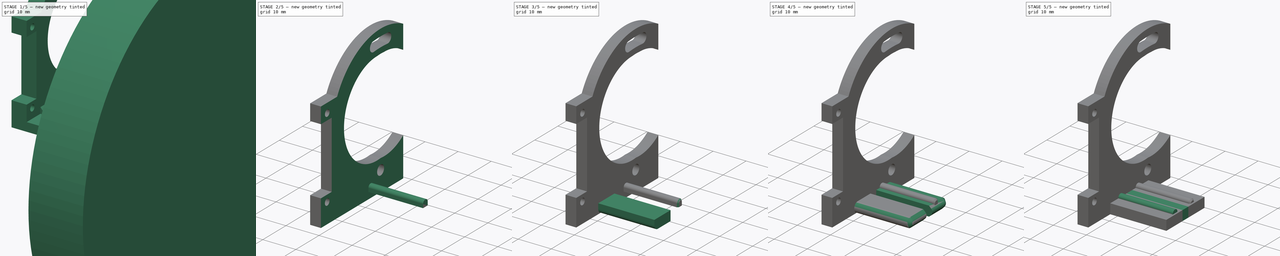
[diagram: build sequence overview — one tinted view per stage of 5, left to right]
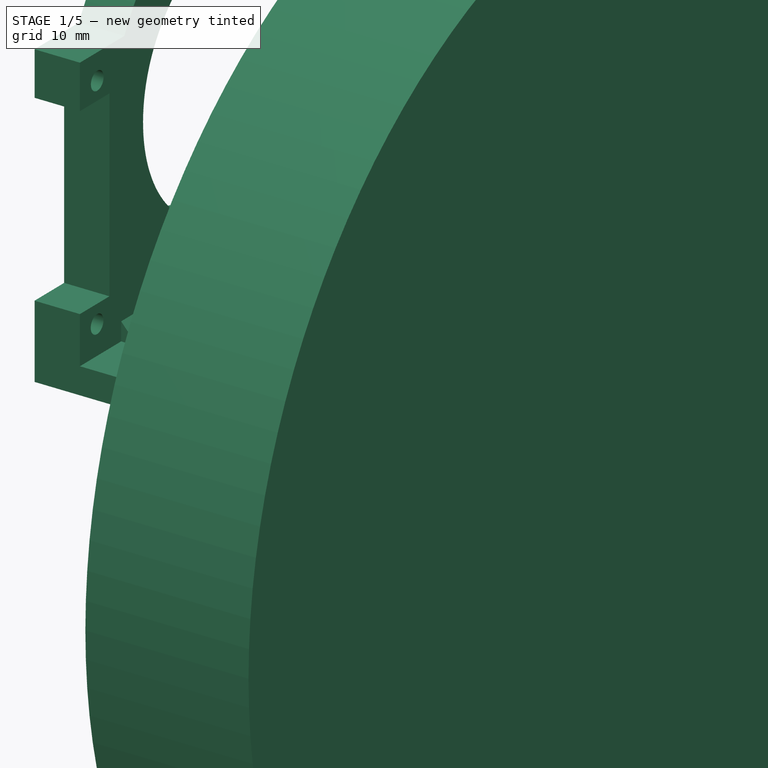
[diagram: stage 1 of 5 — iso view after this stage's code; geometry added in this stage tinted green]
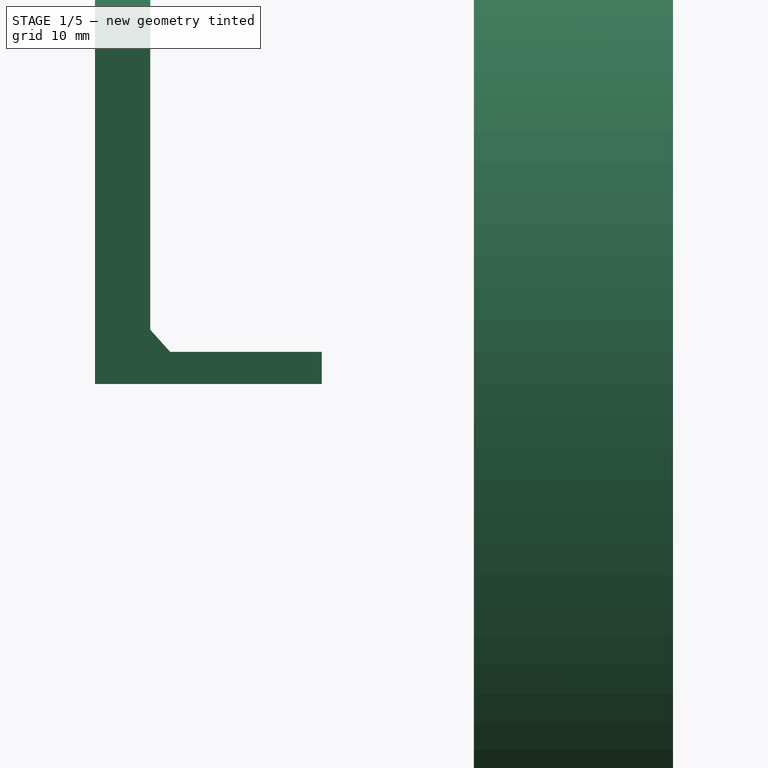
[diagram: stage 1 of 5 — front view after this stage's code; geometry added in this stage tinted green]
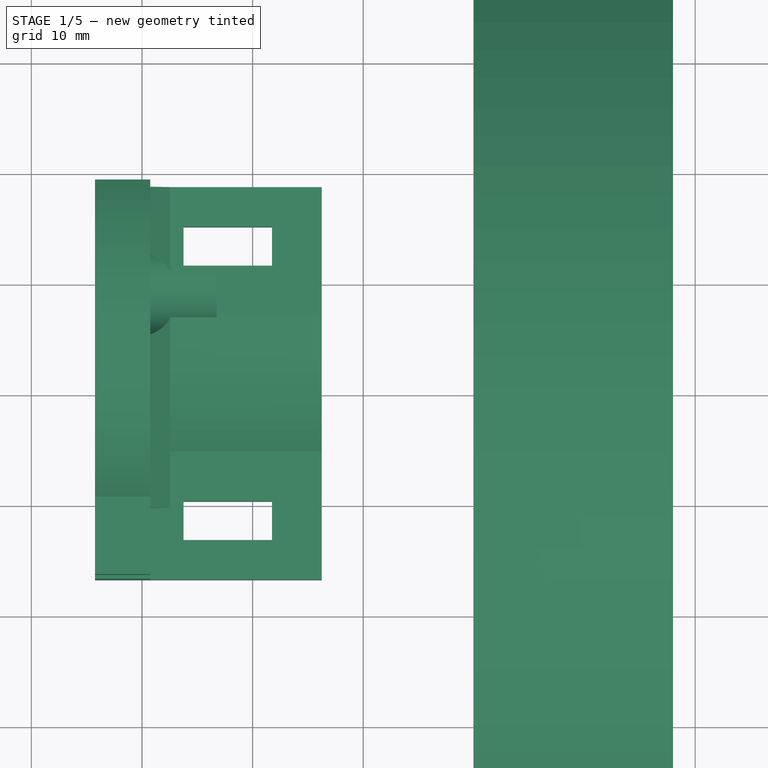
[diagram: stage 1 of 5 — top view after this stage's code; geometry added in this stage tinted green]
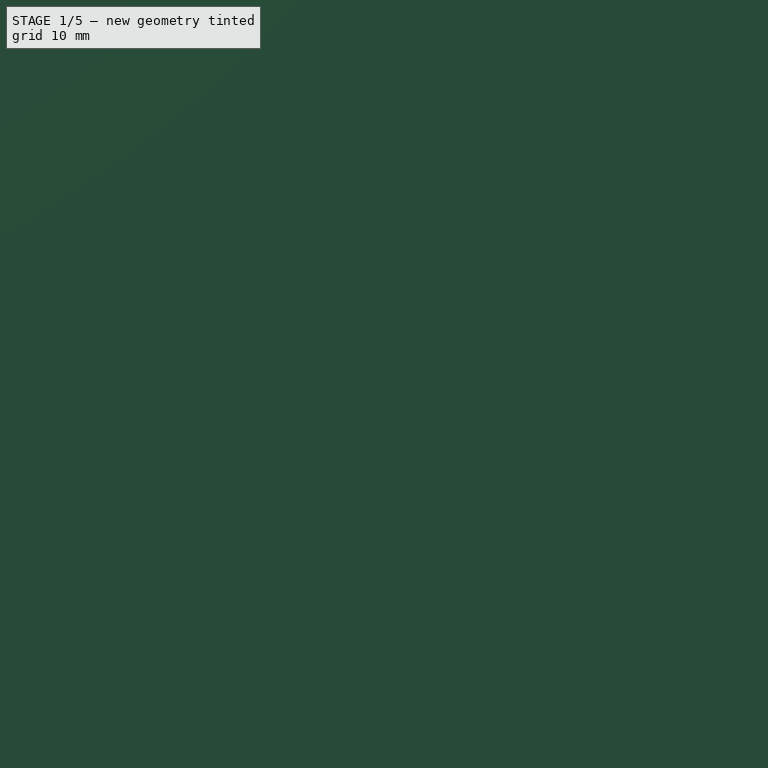
[diagram: stage 1 of 5 — right view after this stage's code; geometry added in this stage tinted green]
FCSTD DOCUMENT  (FreeCAD 0.20R29410 (Git))
Label: druk
License: All rights reserved
LicenseURL: http://en.wikipedia.org/wiki/All_rights_reserved
objects: Part::Fillet×10, Part::FeaturePython×8, Part::Box×6, Part::Feature×4, Part::Chamfer×3, Part::Compound2×2, Sketcher::SketchObject×2, PartDesign::Pad×2, PartDesign::Body×2, App::DocumentObjectGroup×2, Part::Compound×2, Part::MultiFuse×1
note: 42 computed .brp shape members not serialized (recipe doc carries the construction recipe); baked Part::Feature solids carry a one-line shape summary decoded from their .brp

FEATURE [Part::Feature] Solid
  shape: bbox 18.5 x 35.5 x 44.6 mm, 50 faces (baked)
FEATURE [Part::Compound2] Compound  label="blinds mount v12"
  Links = -> [Solid]
  Placement = pos=(-23,0,0) rot=(0,0,1;0rad)
FEATURE [Sketcher::SketchObject] Sketch
  FullyConstrained = false
  MapMode = 5
  Placement = pos=(0,0,0) rot=(0.57735,0.57735,0.57735;2.0944rad)
  Support = -> [YZ_Plane]
  sketch-geometry (1):
    g0: Circle CenterX=0 CenterY=0 CenterZ=0 NormalX=0 NormalY=0 NormalZ=1 AngleXU=0 Radius=58.6601
  constraints (1):
    c: Coincident(g0,g-1)
FEATURE [PartDesign::Pad] Pad
  Direction = (1,-2e-16,3e-16)
  Length = 18
  Length2 = 10
  Placement = pos=(0,0,0) rot=(0.57735,0.57735,0.57735;2.0944rad)
  Profile = -> Sketch
  ReferenceAxis = -> Sketch [N_Axis]
  Type = 0
FEATURE [Sketcher::SketchObject] Sketch001
  FullyConstrained = false
  MapMode = 5
  Placement = pos=(0,0,0) rot=(0.57735,0.57735,0.57735;2.0944rad)
  Support = -> [YZ_Plane001]
  sketch-geometry (1):
    g0: Circle CenterX=0 CenterY=0 CenterZ=0 NormalX=0 NormalY=0 NormalZ=1 AngleXU=0 Radius=58.6601
  constraints (1):
    c: Coincident(g0,g-1)
FEATURE [PartDesign::Pad] Pad001
  Direction = (1,-2e-16,3e-16)
  Length = 18
  Length2 = 10
  Placement = pos=(0,0,0) rot=(0.57735,0.57735,0.57735;2.0944rad)
  Profile = -> Sketch001
  ReferenceAxis = -> Sketch001 [N_Axis]
  Type = 0
FEATURE [PartDesign::Body] Body001
  Group = -> [Sketch001,Pad001]
  Origin = -> Origin001
  Placement = pos=(-30,0,0) rot=(0,0,1;0rad)
  Tip = -> Pad001
FEATURE [Part::Feature] Slice_child1003  label="Slice.004"
  Placement = pos=(-1,0,0) rot=(0,0,1;0rad)
  shape: bbox 2.25 x 35.5 x 44.6 mm, 24 faces (baked)
FEATURE [Part::Feature] Solid001
  shape: bbox 18.5 x 35.5 x 44.6 mm, 50 faces (baked)
FEATURE [Part::Compound2] Compound002  label="blinds mount v013"
  Links = -> [Solid001]
  Placement = pos=(-23,0,0) rot=(0,0,1;0rad)
FEATURE [Part::FeaturePython] Slice003  # WARN: FeaturePython — macro-defined, semantics opaque (R4)
  Base = -> Compound002
  Mode = 1
  Tolerance = 0
  Tools = -> [Body001,Solid001]
FEATURE [Part::FeaturePython] Slice_child1002  label="Slice.003"  # WARN: FeaturePython — macro-defined, semantics opaque (R4)
  Base = -> Slice003
  FilterType = 1
  Invert = false
  OverrideMaxVal = 0
  WindowFrom = 80
  WindowTo = 100
  items = 1
FEATURE [App::DocumentObjectGroup] GrExplode_Slice001  label="Exploded Slice001"
  Group = -> [Slice_child1002]
FEATURE [Part::Compound] Compound003
  Links = -> [GrExplode_Slice001,Slice_child1003]
  Placement = pos=(-1,0,0) rot=(0,0,1;0rad)
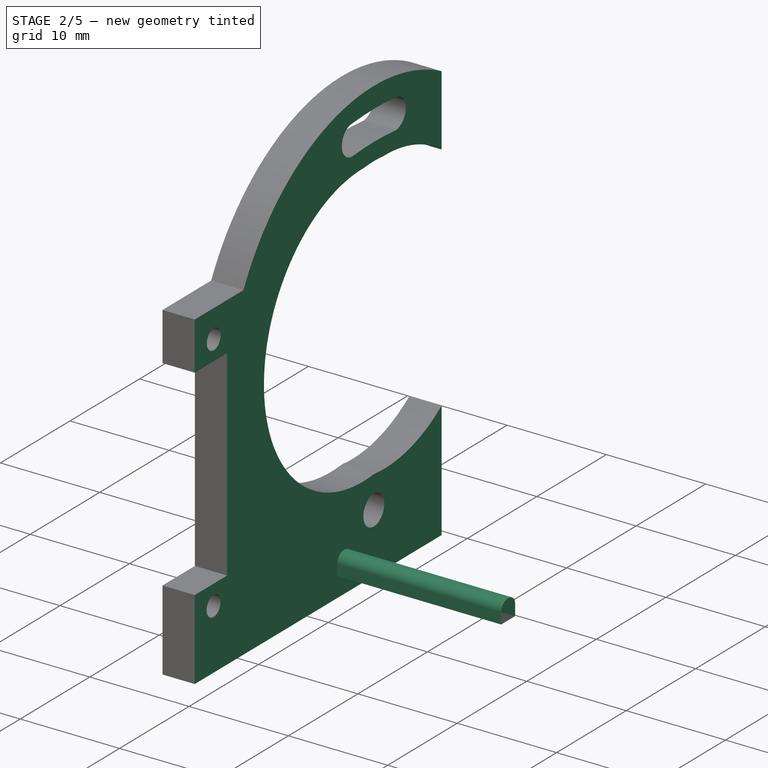
[diagram: stage 2 of 5 — iso view after this stage's code; geometry added in this stage tinted green]
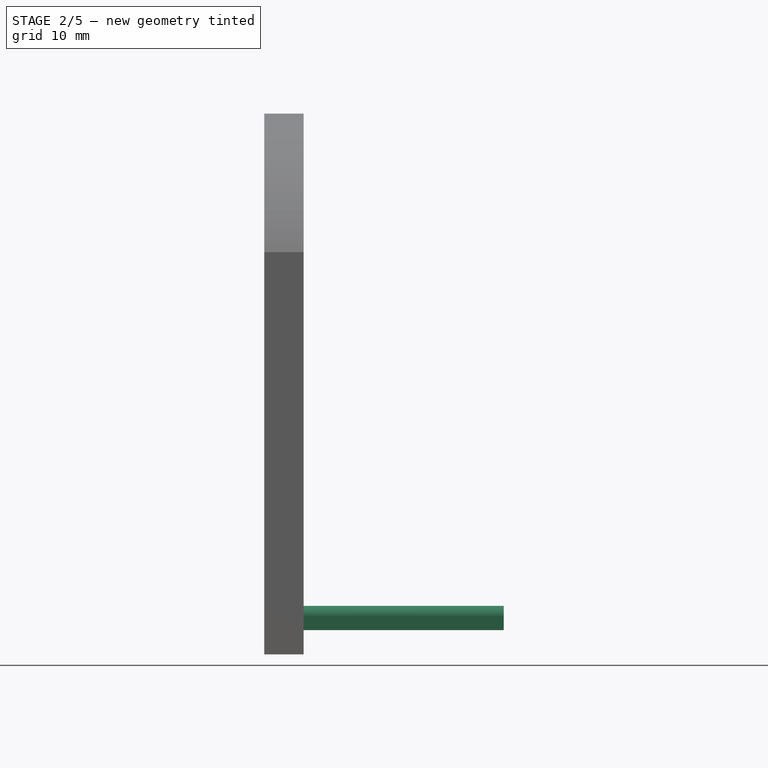
[diagram: stage 2 of 5 — front view after this stage's code; geometry added in this stage tinted green]
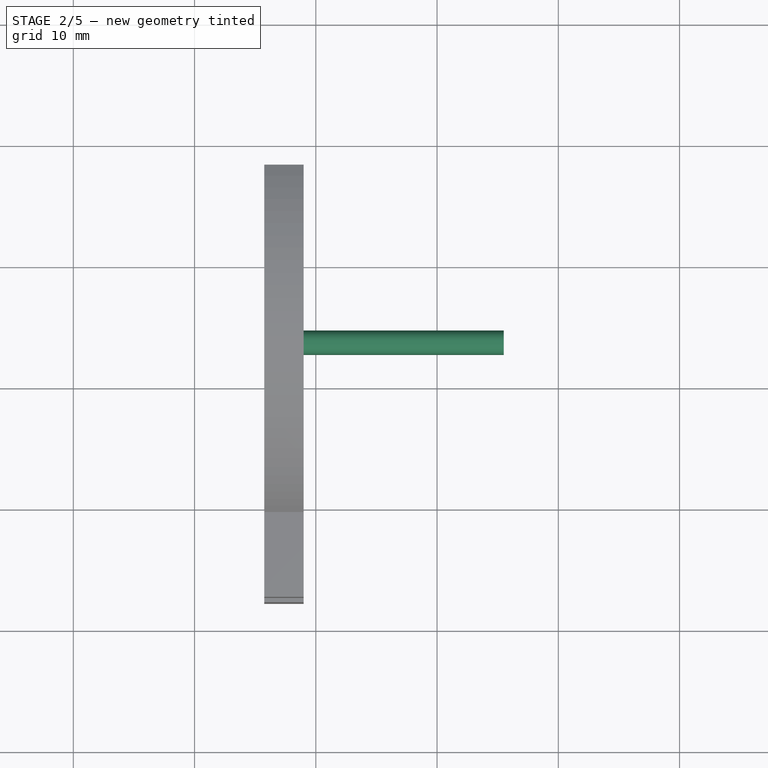
[diagram: stage 2 of 5 — top view after this stage's code; geometry added in this stage tinted green]
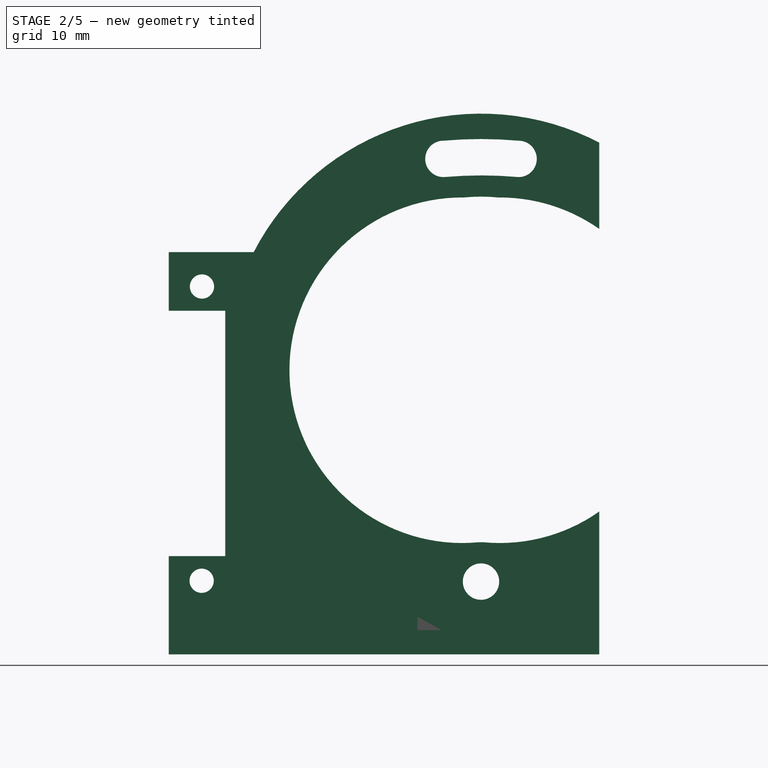
[diagram: stage 2 of 5 — right view after this stage's code; geometry added in this stage tinted green]
FEATURE [PartDesign::Body] Body
  Group = -> [Sketch,Pad]
  Origin = -> Origin
  Placement = pos=(-30,0,0) rot=(0,0,1;0rad)
  Tip = -> Pad
FEATURE [Part::FeaturePython] Slice  # WARN: FeaturePython — macro-defined, semantics opaque (R4)
  Base = -> Compound
  Mode = 1
  Tolerance = 0
  Tools = -> [Body,Solid]
FEATURE [Part::FeaturePython] Slice_child1  label="Slice.1"  # WARN: FeaturePython — macro-defined, semantics opaque (R4)
  Base = -> Slice
  FilterType = 1
  Invert = false
  OverrideMaxVal = 0
  WindowFrom = 80
  WindowTo = 100
  items = 1
FEATURE [App::DocumentObjectGroup] GrExplode_Slice  label="Exploded Slice"
  Group = -> [Slice_child1]
FEATURE [Part::Feature] Slice_child1001  label="Slice.002"
  Placement = pos=(-1,0,0) rot=(0,0,1;0rad)
  shape: bbox 2.25 x 35.5 x 44.6 mm, 24 faces (baked)
FEATURE [Part::Compound] Compound001
  Links = -> [GrExplode_Slice,Slice_child1001]
FEATURE [Part::Box] Box006  label="Sześcian006"
  AttacherType = Attacher::AttachEngine3D
  Height = 2
  Length = 16.5
  Placement = pos=(-31,-4.75,2) rot=(0,0,1;0rad)
  Width = 2
FEATURE [Part::Fillet] Fillet008
  Base = -> Box006
  Edges = 1 edges r=0.9: [Edge10]
FEATURE [Part::Fillet] Fillet009
  Base = -> Fillet008
  Edges = 1 edges r=0.9: [Edge14]
  Placement = pos=(0,7.5,0) rot=(0,0,1;0rad)
FEATURE [Part::MultiFuse] Fusion
  Shapes = -> [Compound001,Compound003]
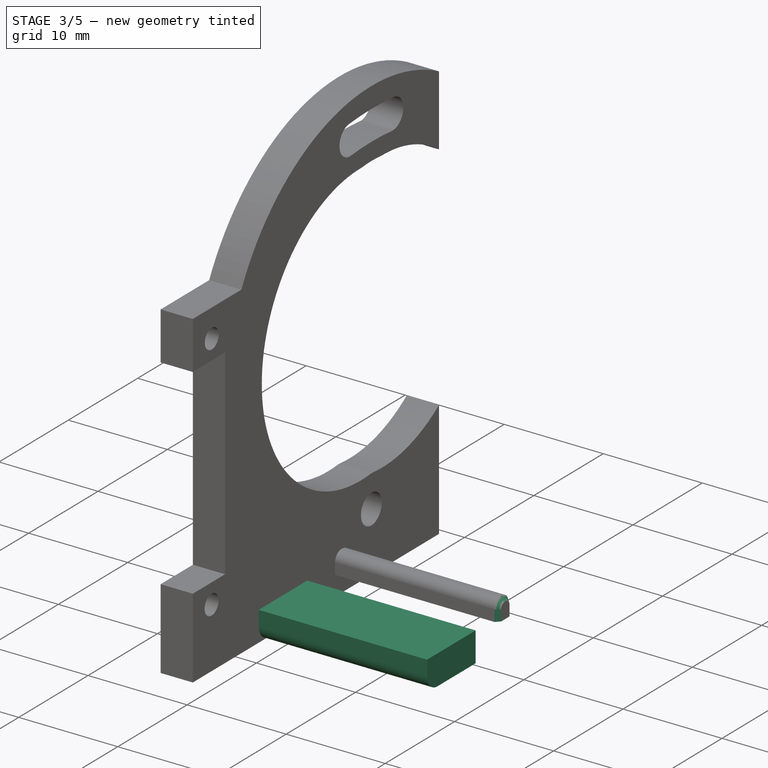
[diagram: stage 3 of 5 — iso view after this stage's code; geometry added in this stage tinted green]
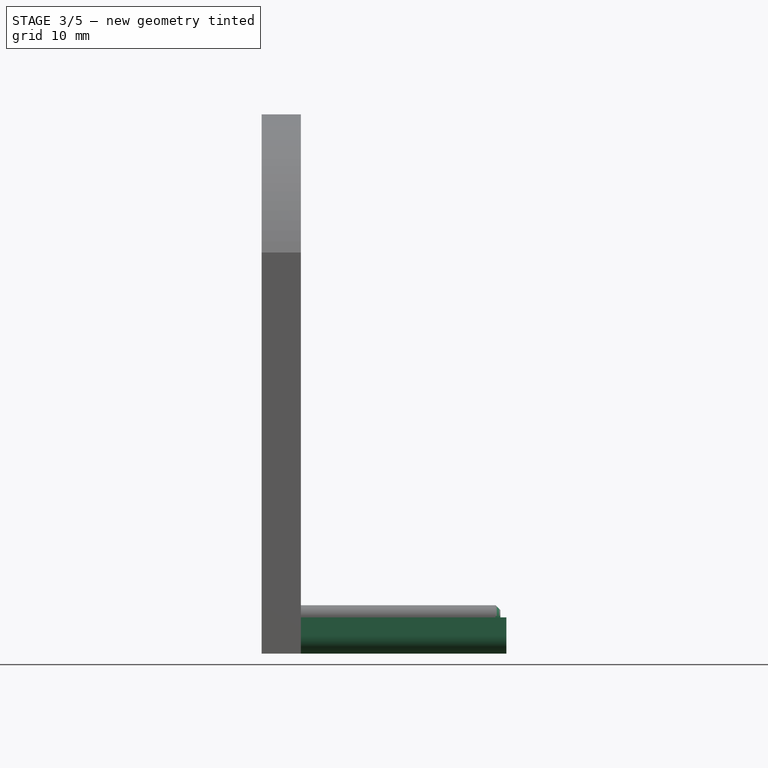
[diagram: stage 3 of 5 — front view after this stage's code; geometry added in this stage tinted green]
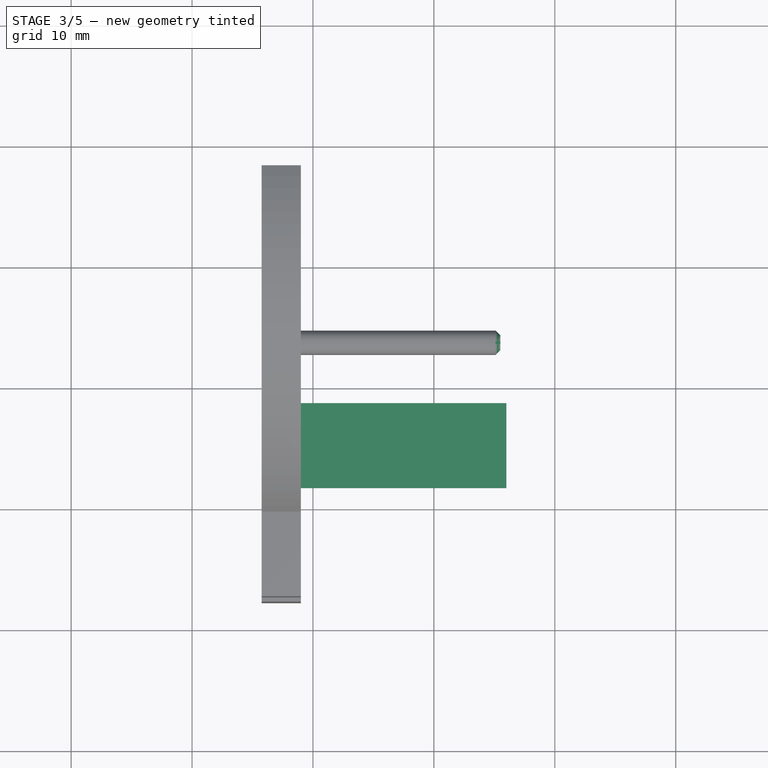
[diagram: stage 3 of 5 — top view after this stage's code; geometry added in this stage tinted green]
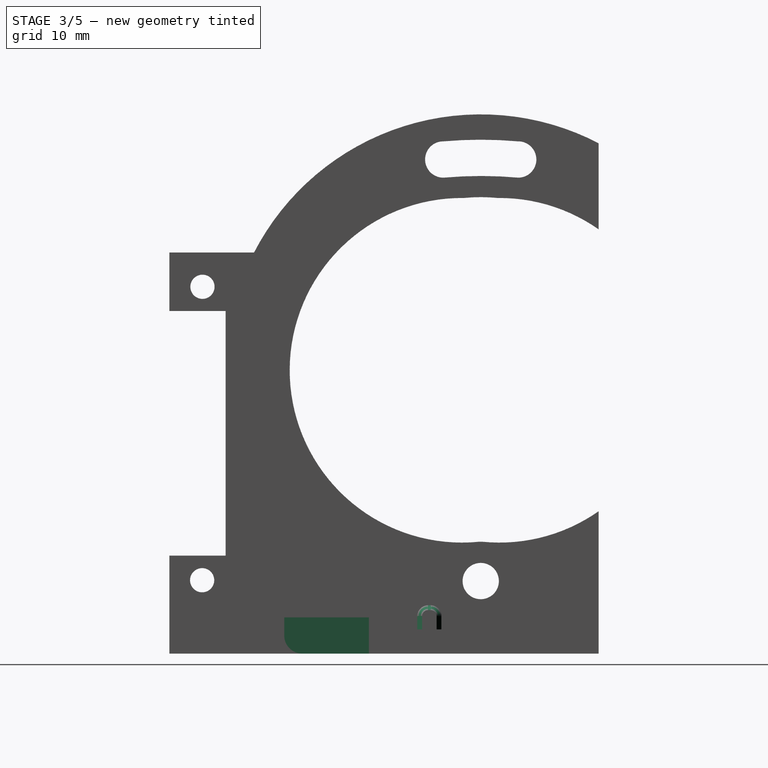
[diagram: stage 3 of 5 — right view after this stage's code; geometry added in this stage tinted green]
FEATURE [Part::Box] Box004  label="Sześcian004"
  AttacherType = Attacher::AttachEngine3D
  Height = 3
  Length = 17
  Placement = pos=(-31,-8.25,0) rot=(0,0,1;0rad)
  Width = 16.5
FEATURE [Part::Box] Box005  label="Sześcian005"
  AttacherType = Attacher::AttachEngine3D
  Height = 3
  Length = 17
  Placement = pos=(-31,-1.25,0) rot=(0,0,1;0rad)
  Width = 2.5
FEATURE [Part::FeaturePython] Slice002  # WARN: FeaturePython — macro-defined, semantics opaque (R4)
  Base = -> Box004
  Mode = 1
  Tolerance = 0
  Tools = -> [Box005]
FEATURE [Part::FeaturePython] Slice001_child003  label="Slice001.003"  # WARN: FeaturePython — macro-defined, semantics opaque (R4)
  Base = -> Slice002
  FilterType = 1
  Invert = false
  OverrideMaxVal = 0
  WindowFrom = 80
  WindowTo = 100
  items = 0
FEATURE [Part::Fillet] Fillet005
  Base = -> Slice001_child003
  Edges = 1 edges r=1.5: [Edge11]
FEATURE [Part::Chamfer] Chamfer002
  Base = -> Fillet009
  Edges = 1 edges r=0.4: [Edge15]
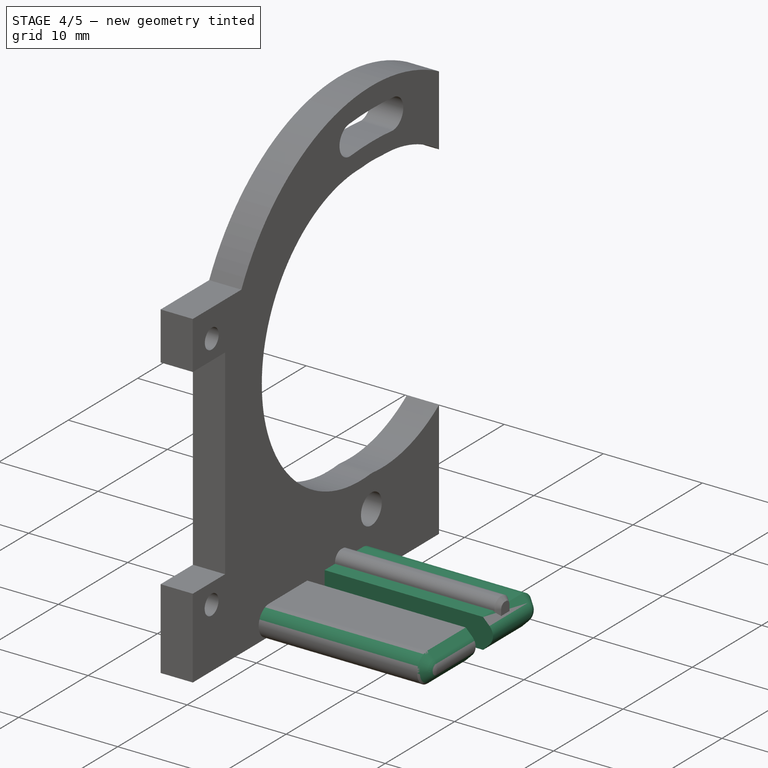
[diagram: stage 4 of 5 — iso view after this stage's code; geometry added in this stage tinted green]
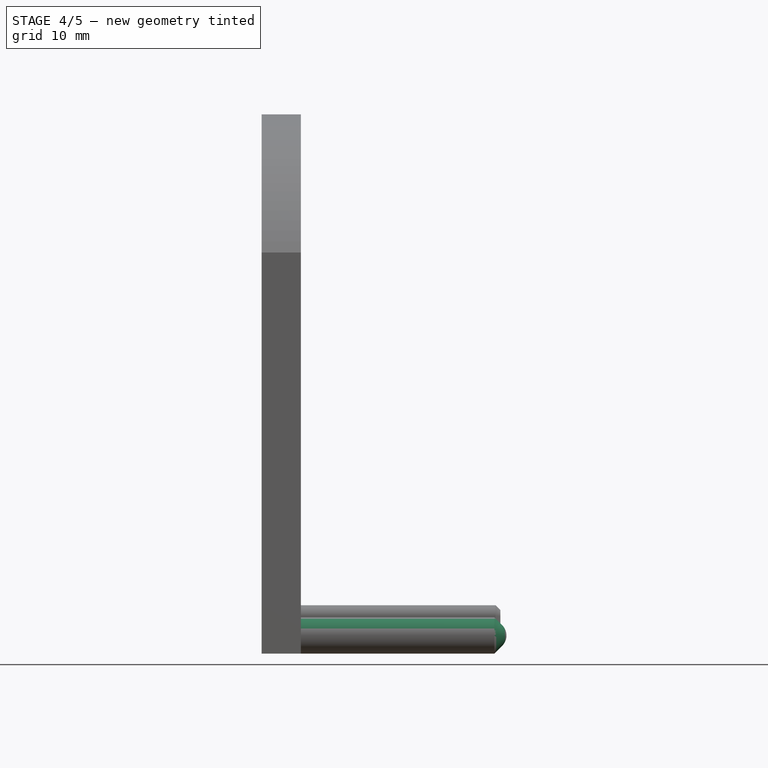
[diagram: stage 4 of 5 — front view after this stage's code; geometry added in this stage tinted green]
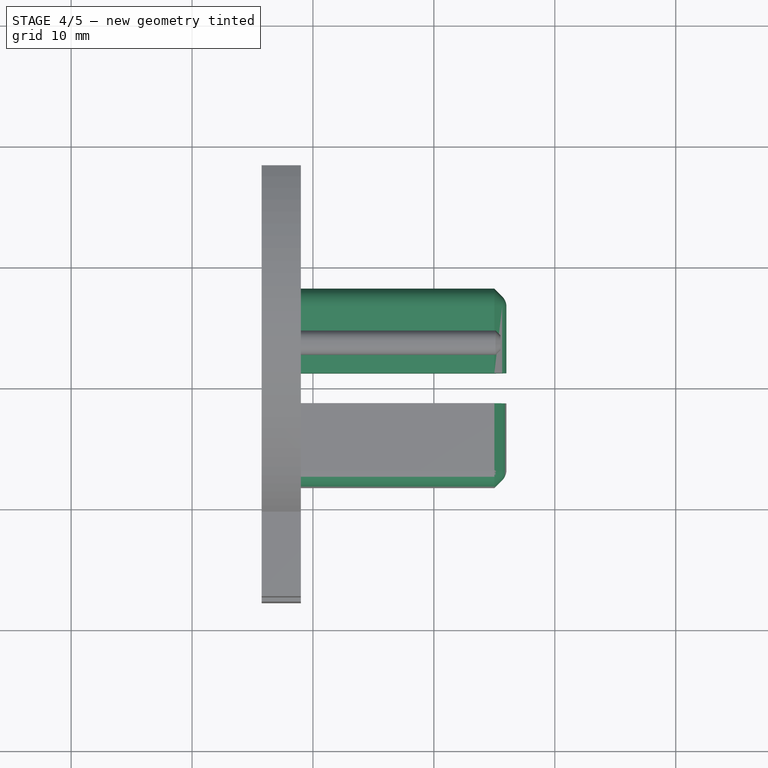
[diagram: stage 4 of 5 — top view after this stage's code; geometry added in this stage tinted green]
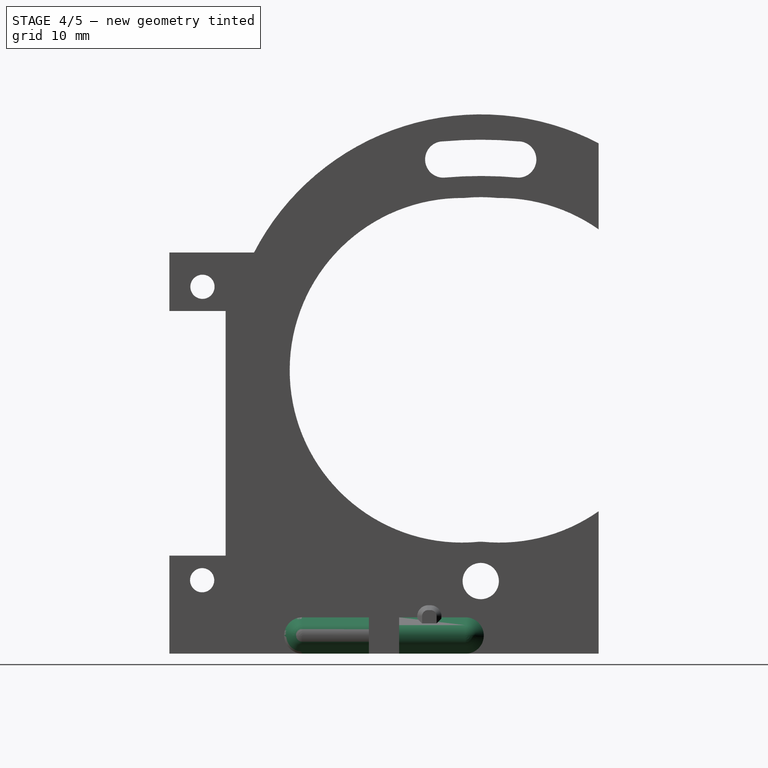
[diagram: stage 4 of 5 — right view after this stage's code; geometry added in this stage tinted green]
FEATURE [Part::Fillet] Fillet002
  Edges = 1 edges r=1.5: [Edge11]
FEATURE [Part::Fillet] Fillet003
  Base = -> Fillet002
  Edges = 1 edges r=1.49: [Edge14]
FEATURE [Part::Chamfer] Chamfer
  Base = -> Fillet003
  Edges = 1 edges r=1: [Edge8]
FEATURE [Part::Fillet] Fillet004
  Base = -> Chamfer
  Edges = 1 edges r=1.2: [Edge10]
FEATURE [Part::Fillet] Fillet006
  Base = -> Fillet005
  Edges = 1 edges r=1.49: [Edge14]
FEATURE [Part::Chamfer] Chamfer001
  Base = -> Fillet006
  Edges = 1 edges r=1: [Edge8]
FEATURE [Part::Fillet] Fillet007
  Base = -> Chamfer001
  Edges = 1 edges r=1.2: [Edge10]
  Placement = pos=(0,0,3) rot=(1,0,0;3.14159rad)
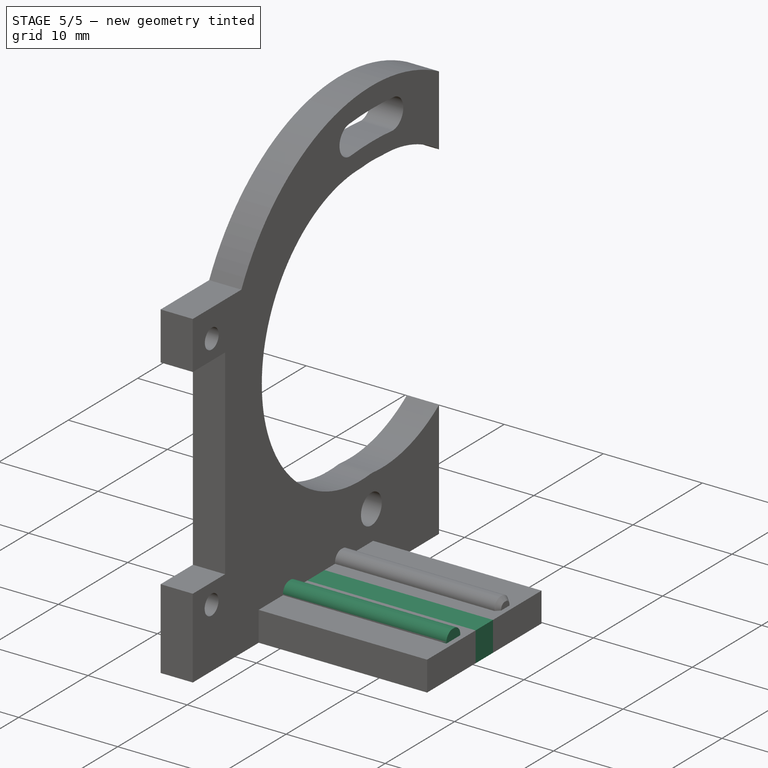
[diagram: stage 5 of 5 — iso view after this stage's code; geometry added in this stage tinted green]
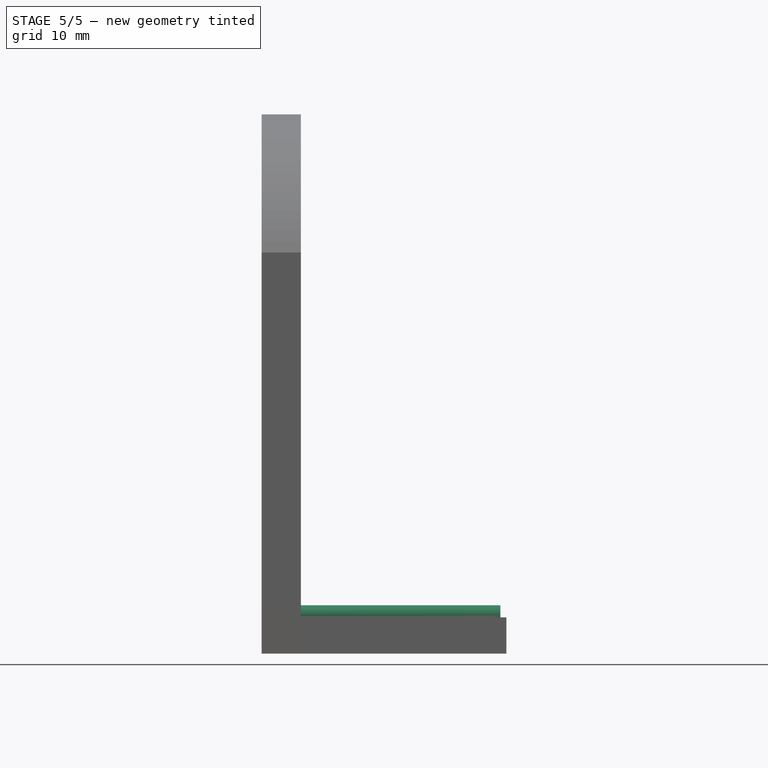
[diagram: stage 5 of 5 — front view after this stage's code; geometry added in this stage tinted green]
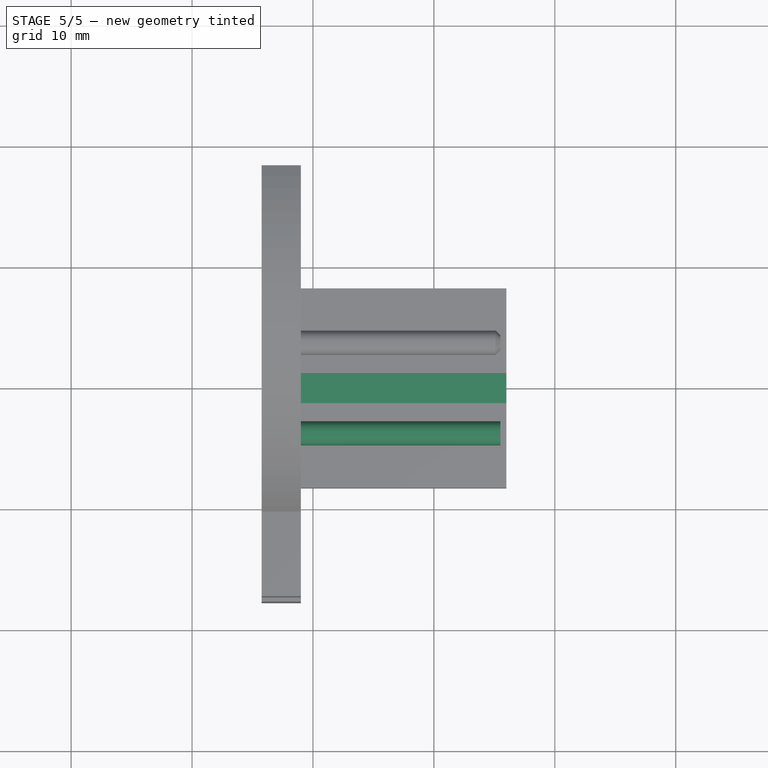
[diagram: stage 5 of 5 — top view after this stage's code; geometry added in this stage tinted green]
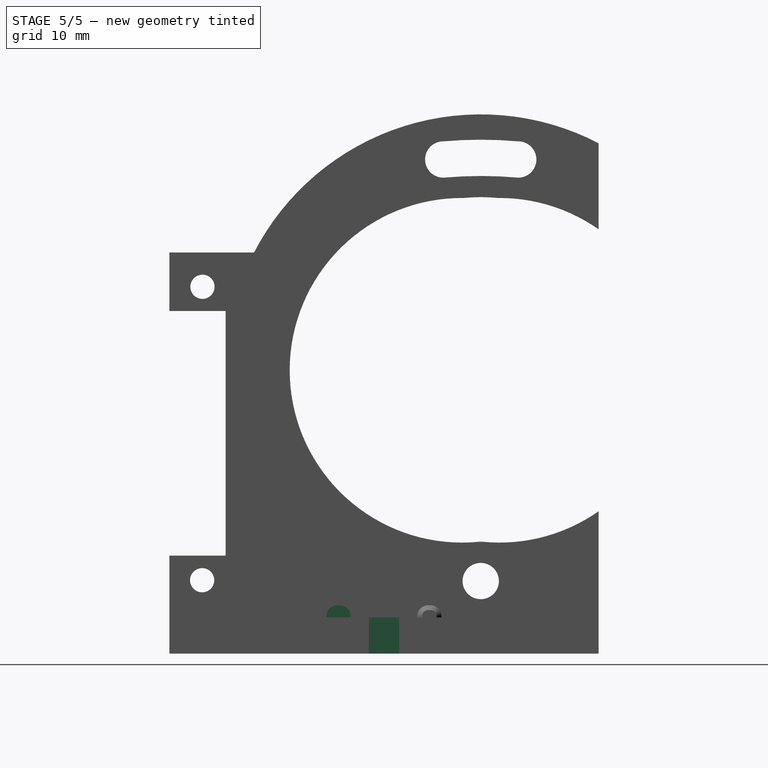
[diagram: stage 5 of 5 — right view after this stage's code; geometry added in this stage tinted green]
FEATURE [Part::Box] Box  label="Sześcian"
  AttacherType = Attacher::AttachEngine3D
  Height = 3
  Length = 17
  Placement = pos=(-31,-8.25,0) rot=(0,0,1;0rad)
  Width = 16.5
FEATURE [Part::Box] Box001  label="Sześcian001"
  AttacherType = Attacher::AttachEngine3D
  Height = 3
  Length = 17
  Placement = pos=(-31,-1.25,0) rot=(0,0,1;0rad)
  Width = 2.5
FEATURE [Part::Box] Box002  label="Sześcian002"
  AttacherType = Attacher::AttachEngine3D
  Height = 2
  Length = 16.5
  Placement = pos=(-31,-4.75,2) rot=(0,0,1;0rad)
  Width = 2
FEATURE [Part::Fillet] Fillet
  Base = -> Box002
  Edges = 1 edges r=0.9: [Edge10]
FEATURE [Part::Fillet] Fillet001
  Base = -> Fillet
  Edges = 1 edges r=0.9: [Edge14]
FEATURE [Part::FeaturePython] Slice001  # WARN: FeaturePython — macro-defined, semantics opaque (R4)
  Base = -> Box
  Mode = 1
  Tolerance = 0
  Tools = -> [Box001]
FEATURE [Part::FeaturePython] Connect  # WARN: FeaturePython — macro-defined, semantics opaque (R4)
  Objects = -> [Fusion,Chamfer002,Fillet007,Fillet004,Fillet001]
  Tolerance = 0
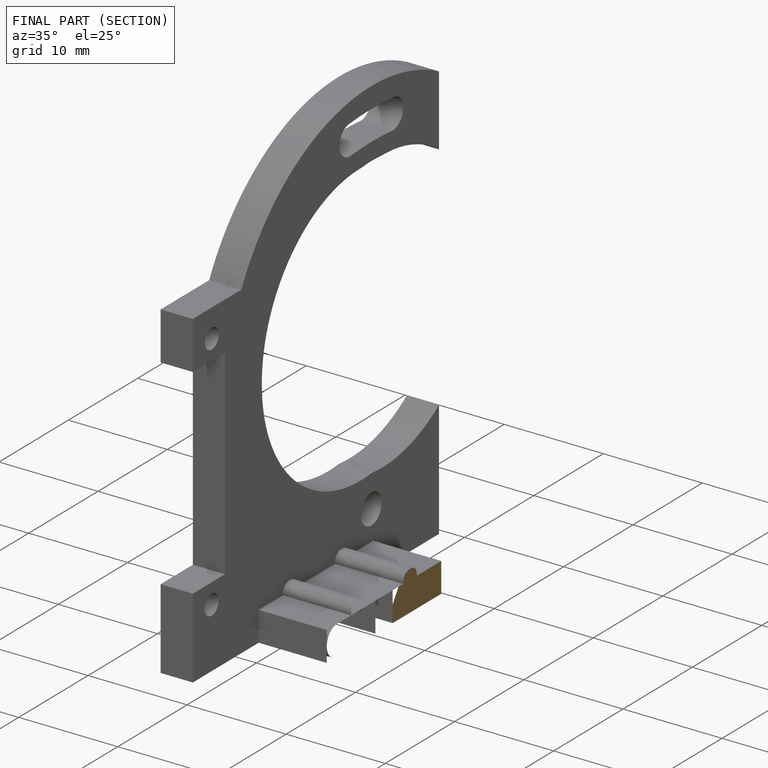
[diagram: finished part — half-section view (interior)]
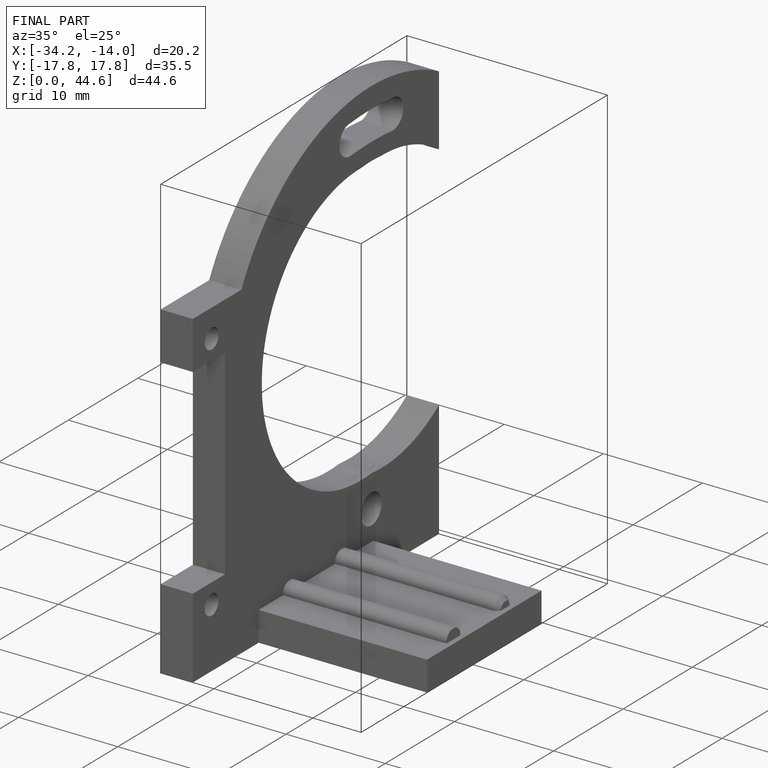
[diagram: finished part — iso view with bounding-box wireframe]
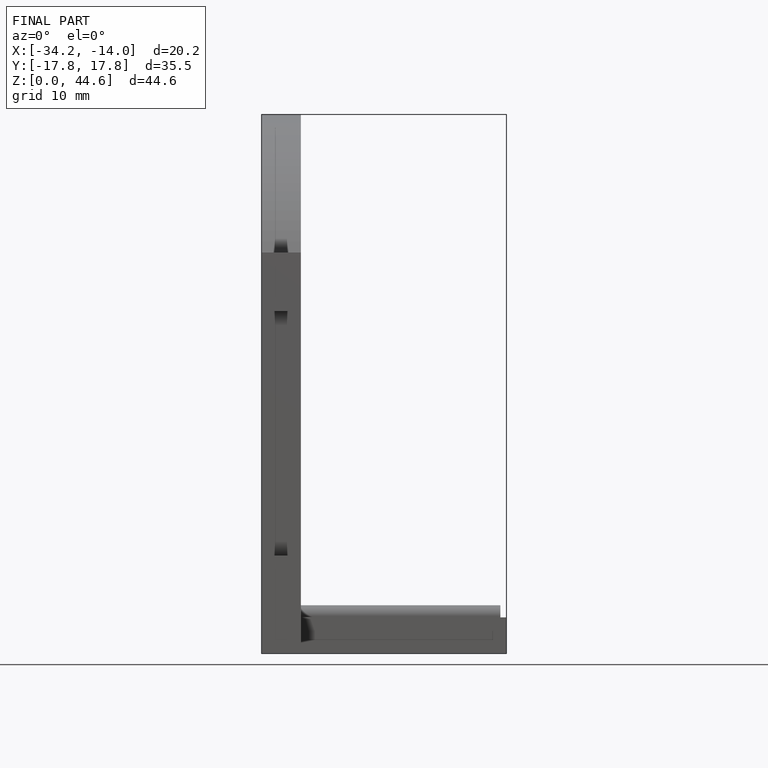
[diagram: finished part — front view with bounding-box wireframe]
